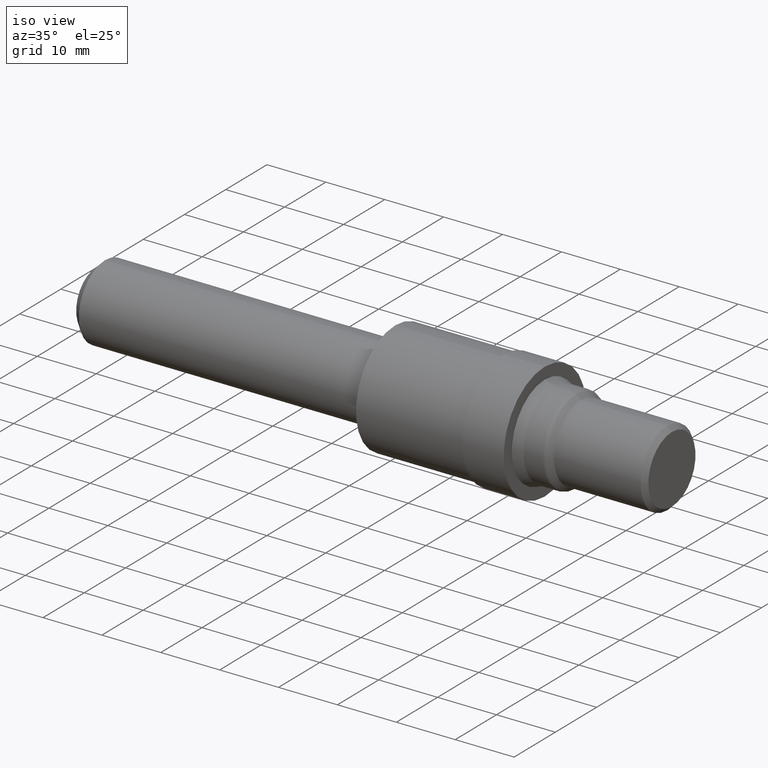
[diagram: clean part render]
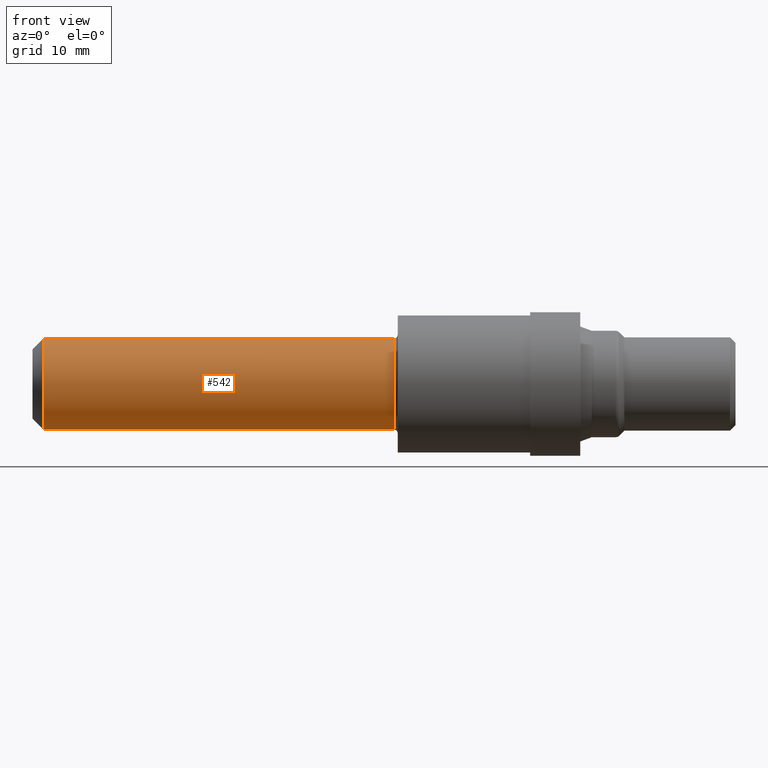
[diagram: tour spotlight — one face highlighted and labeled with its STEP entity id]
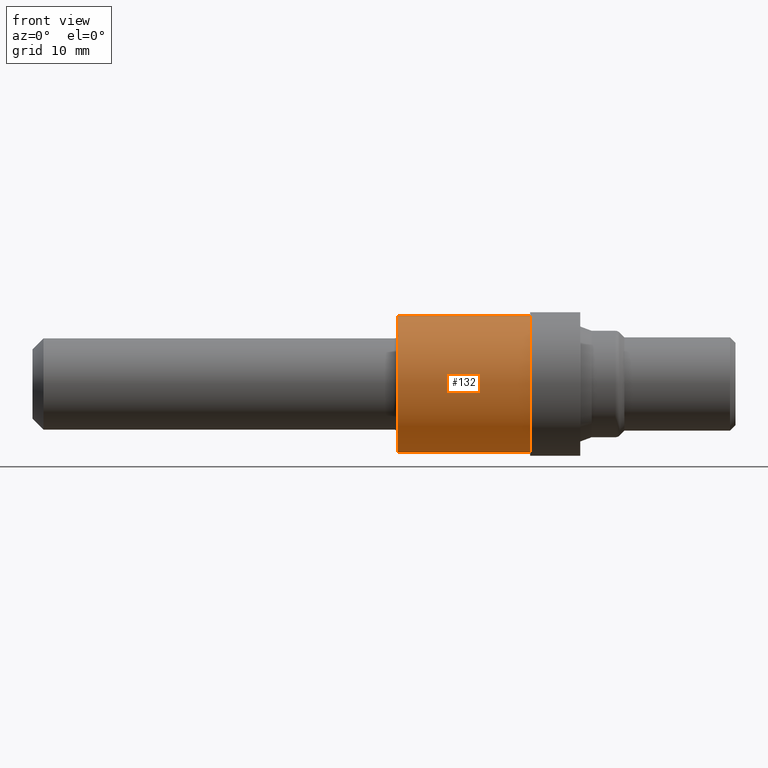
[diagram: tour spotlight — one face highlighted and labeled with its STEP entity id]
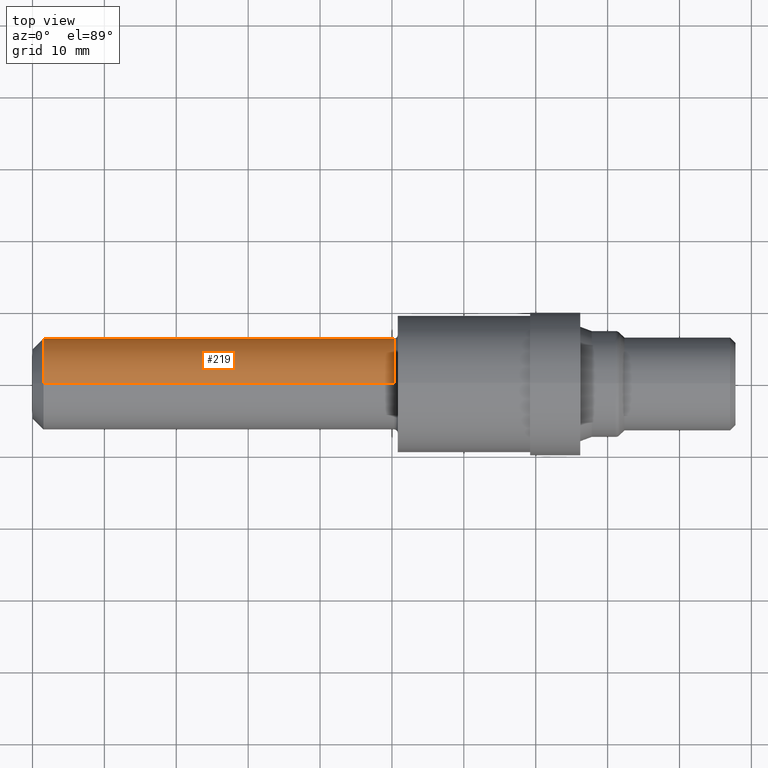
[diagram: tour spotlight — one face highlighted and labeled with its STEP entity id]
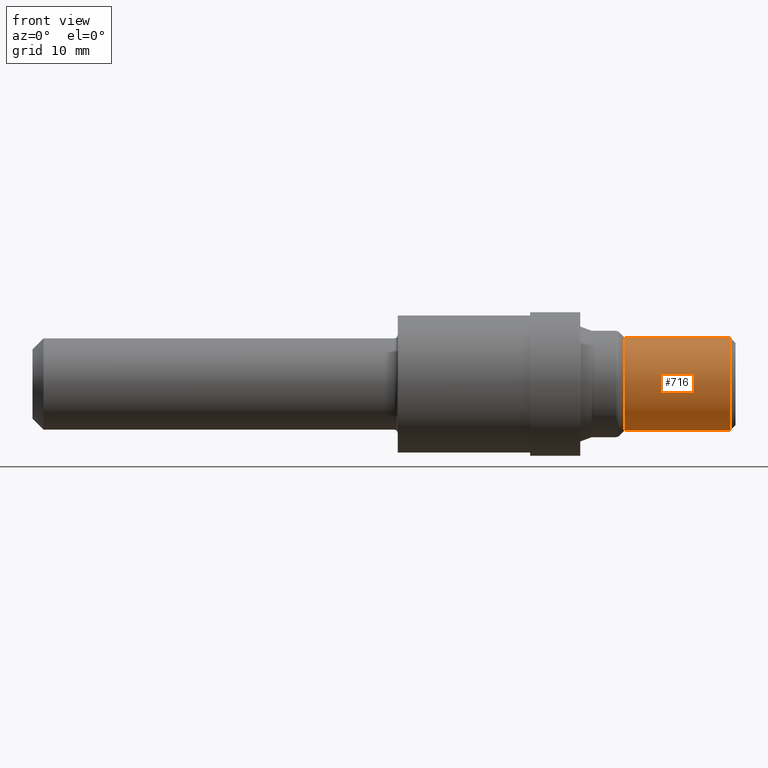
[diagram: tour spotlight — one face highlighted and labeled with its STEP entity id]
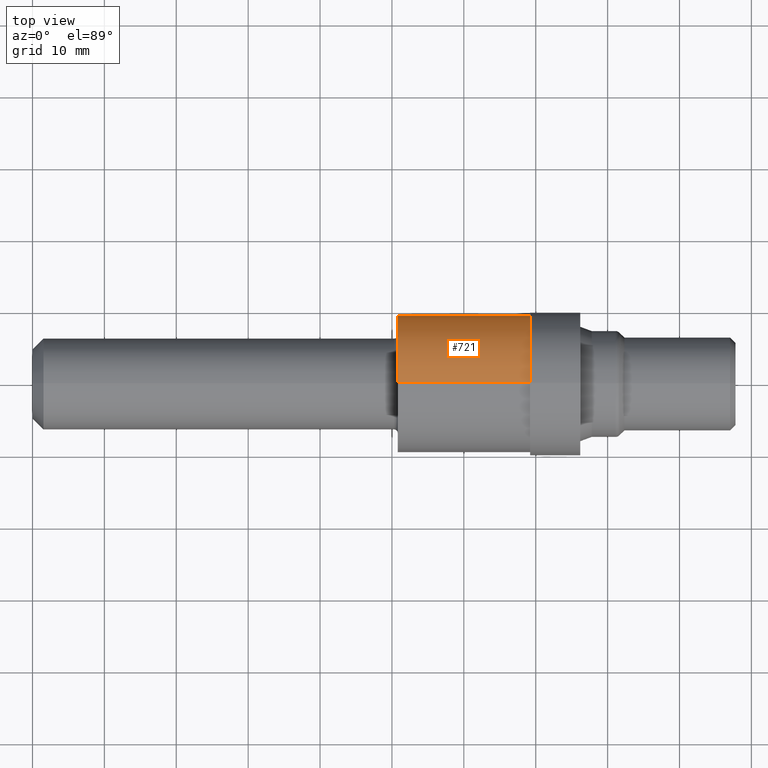
[diagram: tour spotlight — one face highlighted and labeled with its STEP entity id]
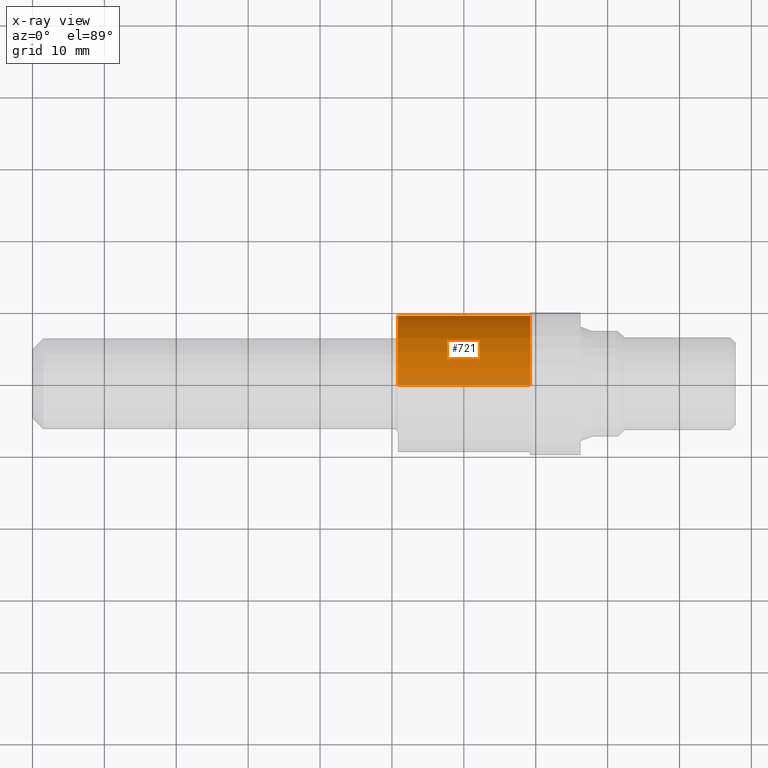
[diagram: x-ray of the same camera — body ghosted, this tour face saturated]
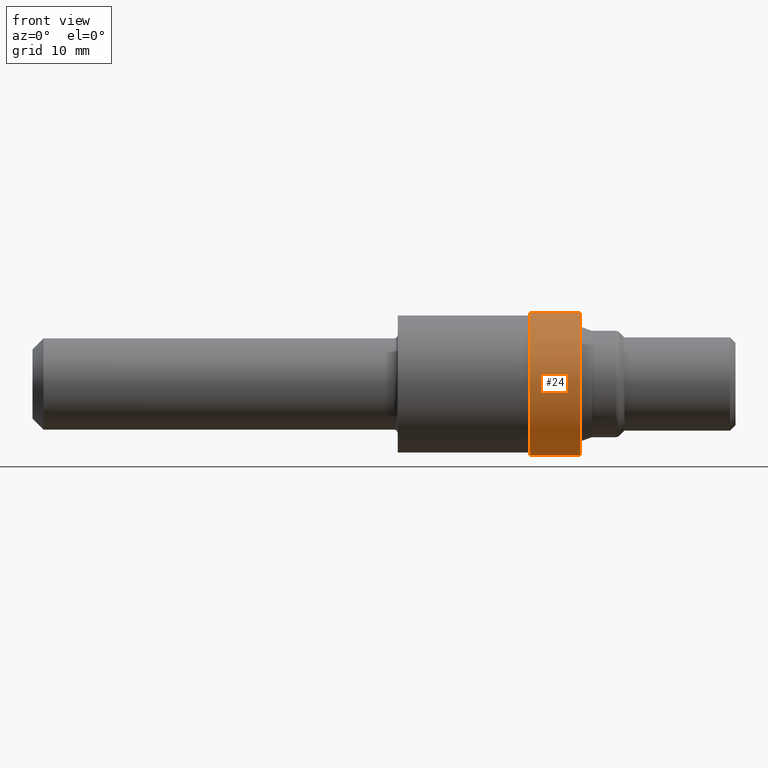
[diagram: tour spotlight — one face highlighted and labeled with its STEP entity id]
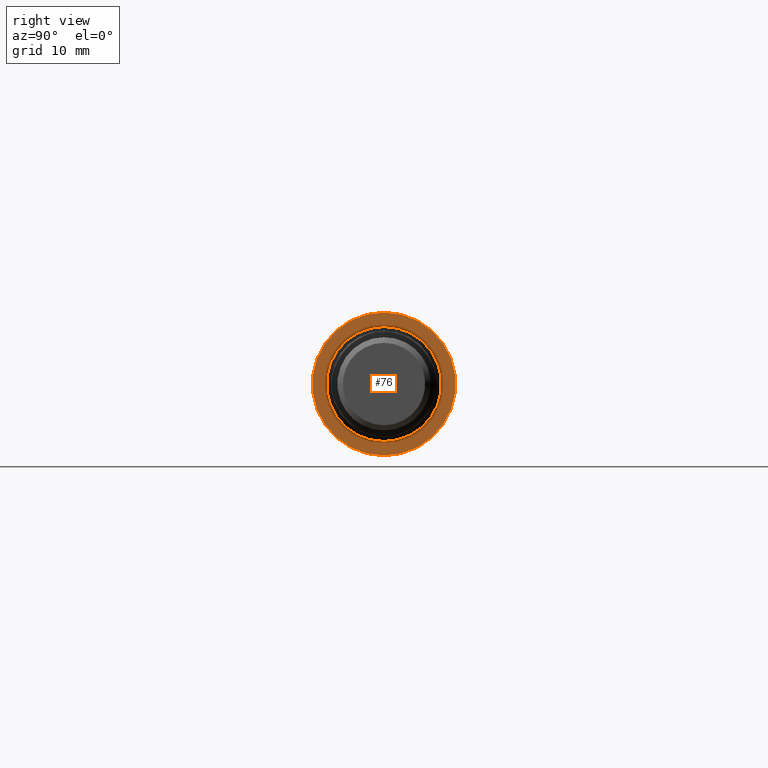
[diagram: tour spotlight — one face highlighted and labeled with its STEP entity id]
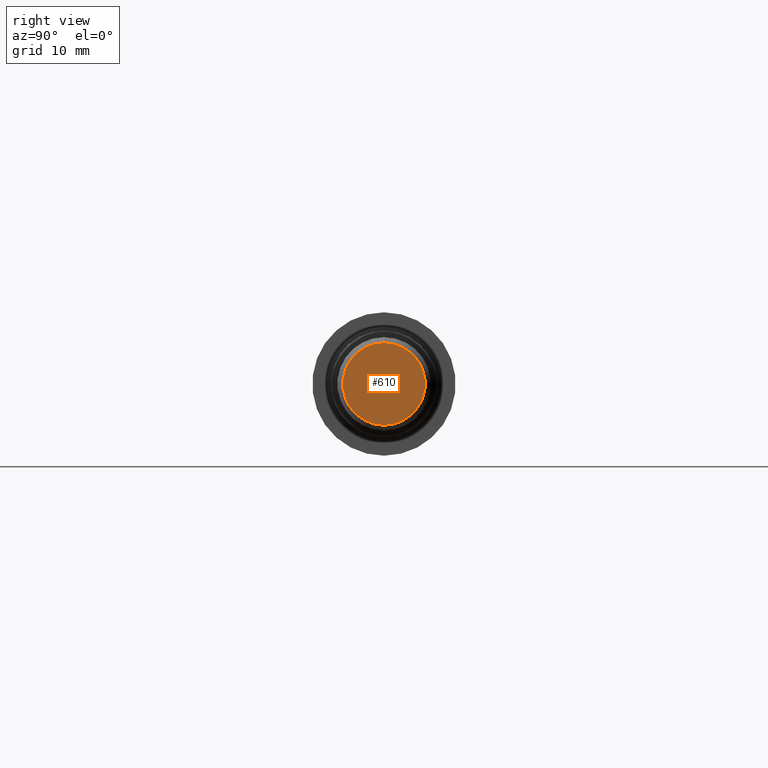
[diagram: tour spotlight — one face highlighted and labeled with its STEP entity id]
A machine part: a face-by-face anatomy tour. The part has 27 B-rep faces; the first image is the clean iso view, then the 8 largest visible faces are spotlighted one at a time (largest first), each with its STEP entity span.

Face 1 — front view, entity #542. In plain terms, the highlighted cylindrical surface (partial cylindrical patch) has radius 6.3462 mm, axis along (-1, -0, -0).
Definition (entity closure, byte-faithful):
#85 = AXIS2_PLACEMENT_3D ( 'NONE', #611, #561, #388 ) ;
#86 = LINE ( 'NONE', #104, #124 ) ;
#96 = CYLINDRICAL_SURFACE ( 'NONE', #395, 0.2498499999999999888 ) ;
#104 = CARTESIAN_POINT ( 'NONE',  ( 0.0000000000000000000, 3.059780027669661931E-17, -0.2498499999999999888 ) ) ;
#109 = VECTOR ( 'NONE', #292, 39.37007874015748143 ) ;
#111 = DIRECTION ( 'NONE',  ( -1.000000000000000000, -0.0000000000000000000, -0.0000000000000000000 ) ) ;
#124 = VECTOR ( 'NONE', #111, 39.37007874015748143 ) ;
#128 = LINE ( 'NONE', #169, #109 ) ;
#169 = CARTESIAN_POINT ( 'NONE',  ( 0.0000000000000000000, 0.0000000000000000000, 0.2498499999999999888 ) ) ;
#170 = EDGE_CURVE ( 'NONE', #297, #676, #128, .T. ) ;
#195 = FACE_OUTER_BOUND ( 'NONE', #258, .T. ) ;
#211 = CIRCLE ( 'NONE', #268, 0.2498500000000000443 ) ;
#238 = DIRECTION ( 'NONE',  ( -1.000000000000000000, -0.0000000000000000000, -0.0000000000000000000 ) ) ;
#258 = EDGE_LOOP ( 'NONE', ( #549, #339, #308, #337 ) ) ;
#268 = AXIS2_PLACEMENT_3D ( 'NONE', #438, #381, #489 ) ;
#292 = DIRECTION ( 'NONE',  ( -1.000000000000000000, -0.0000000000000000000, -0.0000000000000000000 ) ) ;
#297 = VERTEX_POINT ( 'NONE', #450 ) ;
#308 = ORIENTED_EDGE ( 'NONE', *, *, #170, .T. ) ;
#337 = ORIENTED_EDGE ( 'NONE', *, *, #625, .F. ) ;
#339 = ORIENTED_EDGE ( 'NONE', *, *, #517, .T. ) ;
#381 = DIRECTION ( 'NONE',  ( -1.000000000000000000, -0.0000000000000000000, -0.0000000000000000000 ) ) ;
#388 = DIRECTION ( 'NONE',  ( 0.0000000000000000000, 0.0000000000000000000, 1.000000000000000000 ) ) ;
#395 = AXIS2_PLACEMENT_3D ( 'NONE', #592, #238, #574 ) ;
#438 = CARTESIAN_POINT ( 'NONE',  ( 1.979999999999999982, 0.0000000000000000000, 0.0000000000000000000 ) ) ;
#448 = EDGE_CURVE ( 'NONE', #462, #519, #86, .T. ) ;
#450 = CARTESIAN_POINT ( 'NONE',  ( 1.979999999999999982, 0.0000000000000000000, 0.2498500000000000443 ) ) ;
#462 = VERTEX_POINT ( 'NONE', #624 ) ;
#489 = DIRECTION ( 'NONE',  ( 0.0000000000000000000, 0.0000000000000000000, 1.000000000000000000 ) ) ;
#517 = EDGE_CURVE ( 'NONE', #462, #297, #211, .T. ) ;
#519 = VERTEX_POINT ( 'NONE', #553 ) ;
#533 = CIRCLE ( 'NONE', #85, 0.2498499999999999888 ) ;
#542 = ADVANCED_FACE ( 'NONE', ( #195 ), #96, .T. ) ;
#546 = CARTESIAN_POINT ( 'NONE',  ( 0.05999999999999999778, 0.0000000000000000000, 0.2498499999999999888 ) ) ;
#549 = ORIENTED_EDGE ( 'NONE', *, *, #448, .F. ) ;
#553 = CARTESIAN_POINT ( 'NONE',  ( 0.05999999999999999778, 3.059780027669661931E-17, -0.2498499999999999888 ) ) ;
#561 = DIRECTION ( 'NONE',  ( -1.000000000000000000, -0.0000000000000000000, -0.0000000000000000000 ) ) ;
#574 = DIRECTION ( 'NONE',  ( 0.0000000000000000000, 0.0000000000000000000, 1.000000000000000000 ) ) ;
#592 = CARTESIAN_POINT ( 'NONE',  ( 0.0000000000000000000, 0.0000000000000000000, 0.0000000000000000000 ) ) ;
#611 = CARTESIAN_POINT ( 'NONE',  ( 0.05999999999999999778, 0.0000000000000000000, 0.0000000000000000000 ) ) ;
#624 = CARTESIAN_POINT ( 'NONE',  ( 1.979999999999999982, 3.182244707584398213E-17, -0.2498500000000000720 ) ) ;
#625 = EDGE_CURVE ( 'NONE', #519, #676, #533, .T. ) ;
#676 = VERTEX_POINT ( 'NONE', #546 ) ;

Face 2 — front view, entity #132. In plain terms, the highlighted cylindrical surface (partial cylindrical patch) has radius 9.525 mm, axis along (-1, -0, -0).
Definition (entity closure, byte-faithful):
#64 = CARTESIAN_POINT ( 'NONE',  ( 2.725000000000000089, 0.0000000000000000000, 0.3750000000000000555 ) ) ;
#114 = EDGE_CURVE ( 'NONE', #351, #216, #176, .T. ) ;
#119 = CYLINDRICAL_SURFACE ( 'NONE', #728, 0.3750000000000000555 ) ;
#132 = ADVANCED_FACE ( 'NONE', ( #141 ), #119, .T. ) ;
#141 = FACE_OUTER_BOUND ( 'NONE', #332, .T. ) ;
#147 = VECTOR ( 'NONE', #156, 39.37007874015748143 ) ;
#156 = DIRECTION ( 'NONE',  ( -1.000000000000000000, -0.0000000000000000000, -0.0000000000000000000 ) ) ;
#176 = CIRCLE ( 'NONE', #491, 0.3750000000000000555 ) ;
#178 = VECTOR ( 'NONE', #377, 39.37007874015748143 ) ;
#187 = DIRECTION ( 'NONE',  ( 0.0000000000000000000, 0.0000000000000000000, 1.000000000000000000 ) ) ;
#216 = VERTEX_POINT ( 'NONE', #507 ) ;
#246 = LINE ( 'NONE', #255, #147 ) ;
#255 = CARTESIAN_POINT ( 'NONE',  ( 0.0000000000000000000, 4.592425496802575451E-17, -0.3750000000000000555 ) ) ;
#296 = DIRECTION ( 'NONE',  ( -1.000000000000000000, -0.0000000000000000000, -0.0000000000000000000 ) ) ;
#318 = DIRECTION ( 'NONE',  ( 0.0000000000000000000, 0.0000000000000000000, 1.000000000000000000 ) ) ;
#330 = EDGE_CURVE ( 'NONE', #398, #351, #246, .T. ) ;
#332 = EDGE_LOOP ( 'NONE', ( #529, #413, #539, #723 ) ) ;
#351 = VERTEX_POINT ( 'NONE', #593 ) ;
#377 = DIRECTION ( 'NONE',  ( -1.000000000000000000, -0.0000000000000000000, -0.0000000000000000000 ) ) ;
#398 = VERTEX_POINT ( 'NONE', #478 ) ;
#413 = ORIENTED_EDGE ( 'NONE', *, *, #509, .T. ) ;
#444 = CARTESIAN_POINT ( 'NONE',  ( 2.000000000000000000, 0.0000000000000000000, 0.0000000000000000000 ) ) ;
#478 = CARTESIAN_POINT ( 'NONE',  ( 2.725000000000000089, 4.592425496802575451E-17, -0.3750000000000000555 ) ) ;
#491 = AXIS2_PLACEMENT_3D ( 'NONE', #444, #550, #318 ) ;
#507 = CARTESIAN_POINT ( 'NONE',  ( 2.000000000000000000, 0.0000000000000000000, 0.3750000000000000555 ) ) ;
#509 = EDGE_CURVE ( 'NONE', #398, #548, #725, .T. ) ;
#512 = LINE ( 'NONE', #599, #178 ) ;
#523 = CARTESIAN_POINT ( 'NONE',  ( 2.725000000000000089, 0.0000000000000000000, 0.0000000000000000000 ) ) ;
#529 = ORIENTED_EDGE ( 'NONE', *, *, #330, .F. ) ;
#539 = ORIENTED_EDGE ( 'NONE', *, *, #589, .T. ) ;
#545 = AXIS2_PLACEMENT_3D ( 'NONE', #523, #570, #187 ) ;
#548 = VERTEX_POINT ( 'NONE', #64 ) ;
#550 = DIRECTION ( 'NONE',  ( -1.000000000000000000, -0.0000000000000000000, -0.0000000000000000000 ) ) ;
#557 = DIRECTION ( 'NONE',  ( 0.0000000000000000000, 0.0000000000000000000, 1.000000000000000000 ) ) ;
#570 = DIRECTION ( 'NONE',  ( -1.000000000000000000, -0.0000000000000000000, -0.0000000000000000000 ) ) ;
#589 = EDGE_CURVE ( 'NONE', #548, #216, #512, .T. ) ;
#593 = CARTESIAN_POINT ( 'NONE',  ( 2.000000000000000000, 4.592425496802575451E-17, -0.3750000000000000555 ) ) ;
#599 = CARTESIAN_POINT ( 'NONE',  ( 0.0000000000000000000, 0.0000000000000000000, 0.3750000000000000555 ) ) ;
#685 = CARTESIAN_POINT ( 'NONE',  ( 0.0000000000000000000, 0.0000000000000000000, 0.0000000000000000000 ) ) ;
#723 = ORIENTED_EDGE ( 'NONE', *, *, #114, .F. ) ;
#725 = CIRCLE ( 'NONE', #545, 0.3750000000000000555 ) ;
#728 = AXIS2_PLACEMENT_3D ( 'NONE', #685, #296, #557 ) ;

Face 3 — top view, entity #219. In plain terms, the highlighted cylindrical surface (partial cylindrical patch) has radius 6.3462 mm, axis along (-1, -0, -0).
Definition (entity closure, byte-faithful):
#51 = CYLINDRICAL_SURFACE ( 'NONE', #653, 0.2498499999999999888 ) ;
#66 = DIRECTION ( 'NONE',  ( 0.0000000000000000000, 0.0000000000000000000, 1.000000000000000000 ) ) ;
#67 = FACE_OUTER_BOUND ( 'NONE', #606, .T. ) ;
#80 = CIRCLE ( 'NONE', #673, 0.2498500000000000443 ) ;
#86 = LINE ( 'NONE', #104, #124 ) ;
#104 = CARTESIAN_POINT ( 'NONE',  ( 0.0000000000000000000, 3.059780027669661931E-17, -0.2498499999999999888 ) ) ;
#109 = VECTOR ( 'NONE', #292, 39.37007874015748143 ) ;
#111 = DIRECTION ( 'NONE',  ( -1.000000000000000000, -0.0000000000000000000, -0.0000000000000000000 ) ) ;
#124 = VECTOR ( 'NONE', #111, 39.37007874015748143 ) ;
#128 = LINE ( 'NONE', #169, #109 ) ;
#139 = DIRECTION ( 'NONE',  ( -1.000000000000000000, -0.0000000000000000000, -0.0000000000000000000 ) ) ;
#144 = DIRECTION ( 'NONE',  ( 0.0000000000000000000, 0.0000000000000000000, 1.000000000000000000 ) ) ;
#160 = DIRECTION ( 'NONE',  ( 0.0000000000000000000, 0.0000000000000000000, 1.000000000000000000 ) ) ;
#169 = CARTESIAN_POINT ( 'NONE',  ( 0.0000000000000000000, 0.0000000000000000000, 0.2498499999999999888 ) ) ;
#170 = EDGE_CURVE ( 'NONE', #297, #676, #128, .T. ) ;
#208 = EDGE_CURVE ( 'NONE', #297, #462, #80, .T. ) ;
#219 = ADVANCED_FACE ( 'NONE', ( #67 ), #51, .T. ) ;
#245 = CARTESIAN_POINT ( 'NONE',  ( 1.979999999999999982, 0.0000000000000000000, 0.0000000000000000000 ) ) ;
#247 = DIRECTION ( 'NONE',  ( -1.000000000000000000, -0.0000000000000000000, -0.0000000000000000000 ) ) ;
#275 = AXIS2_PLACEMENT_3D ( 'NONE', #419, #654, #66 ) ;
#292 = DIRECTION ( 'NONE',  ( -1.000000000000000000, -0.0000000000000000000, -0.0000000000000000000 ) ) ;
#297 = VERTEX_POINT ( 'NONE', #450 ) ;
#372 = CARTESIAN_POINT ( 'NONE',  ( 0.0000000000000000000, 0.0000000000000000000, 0.0000000000000000000 ) ) ;
#419 = CARTESIAN_POINT ( 'NONE',  ( 0.05999999999999999778, 0.0000000000000000000, 0.0000000000000000000 ) ) ;
#448 = EDGE_CURVE ( 'NONE', #462, #519, #86, .T. ) ;
#450 = CARTESIAN_POINT ( 'NONE',  ( 1.979999999999999982, 0.0000000000000000000, 0.2498500000000000443 ) ) ;
#461 = ORIENTED_EDGE ( 'NONE', *, *, #208, .T. ) ;
#462 = VERTEX_POINT ( 'NONE', #624 ) ;
#483 = ORIENTED_EDGE ( 'NONE', *, *, #668, .F. ) ;
#519 = VERTEX_POINT ( 'NONE', #553 ) ;
#546 = CARTESIAN_POINT ( 'NONE',  ( 0.05999999999999999778, 0.0000000000000000000, 0.2498499999999999888 ) ) ;
#553 = CARTESIAN_POINT ( 'NONE',  ( 0.05999999999999999778, 3.059780027669661931E-17, -0.2498499999999999888 ) ) ;
#585 = ORIENTED_EDGE ( 'NONE', *, *, #448, .T. ) ;
#606 = EDGE_LOOP ( 'NONE', ( #461, #585, #483, #710 ) ) ;
#624 = CARTESIAN_POINT ( 'NONE',  ( 1.979999999999999982, 3.182244707584398213E-17, -0.2498500000000000720 ) ) ;
#653 = AXIS2_PLACEMENT_3D ( 'NONE', #372, #139, #144 ) ;
#654 = DIRECTION ( 'NONE',  ( -1.000000000000000000, -0.0000000000000000000, -0.0000000000000000000 ) ) ;
#668 = EDGE_CURVE ( 'NONE', #676, #519, #681, .T. ) ;
#673 = AXIS2_PLACEMENT_3D ( 'NONE', #245, #247, #160 ) ;
#676 = VERTEX_POINT ( 'NONE', #546 ) ;
#681 = CIRCLE ( 'NONE', #275, 0.2498499999999999888 ) ;
#710 = ORIENTED_EDGE ( 'NONE', *, *, #170, .F. ) ;

Face 4 — front view, entity #716. In plain terms, the highlighted cylindrical surface (partial cylindrical patch) has radius 6.4935 mm, axis along (-1, -0, -0).
Definition (entity closure, byte-faithful):
#28 = EDGE_CURVE ( 'NONE', #451, #674, #189, .T. ) ;
#35 = ORIENTED_EDGE ( 'NONE', *, *, #28, .T. ) ;
#44 = FACE_OUTER_BOUND ( 'NONE', #707, .T. ) ;
#56 = DIRECTION ( 'NONE',  ( -1.000000000000000000, -0.0000000000000000000, -0.0000000000000000000 ) ) ;
#65 = VECTOR ( 'NONE', #454, 39.37007874015748143 ) ;
#78 = LINE ( 'NONE', #154, #65 ) ;
#121 = EDGE_CURVE ( 'NONE', #451, #740, #151, .T. ) ;
#140 = VECTOR ( 'NONE', #56, 39.37007874015748143 ) ;
#151 = LINE ( 'NONE', #315, #140 ) ;
#154 = CARTESIAN_POINT ( 'NONE',  ( 0.0000000000000000000, 0.0000000000000000000, 0.2556499999999999884 ) ) ;
#173 = AXIS2_PLACEMENT_3D ( 'NONE', #239, #741, #508 ) ;
#181 = CARTESIAN_POINT ( 'NONE',  ( 3.820000000000000284, 0.0000000000000000000, 0.0000000000000000000 ) ) ;
#189 = CIRCLE ( 'NONE', #368, 0.2556499999999999884 ) ;
#203 = CARTESIAN_POINT ( 'NONE',  ( 3.820000000000000284, 0.0000000000000000000, 0.2556499999999999884 ) ) ;
#223 = EDGE_CURVE ( 'NONE', #674, #614, #78, .T. ) ;
#226 = AXIS2_PLACEMENT_3D ( 'NONE', #358, #392, #699 ) ;
#239 = CARTESIAN_POINT ( 'NONE',  ( 3.241249999999999964, 0.0000000000000000000, 0.0000000000000000000 ) ) ;
#253 = ORIENTED_EDGE ( 'NONE', *, *, #223, .T. ) ;
#291 = CYLINDRICAL_SURFACE ( 'NONE', #226, 0.2556499999999999884 ) ;
#315 = CARTESIAN_POINT ( 'NONE',  ( 0.0000000000000000000, 3.130809542020208383E-17, -0.2556499999999999884 ) ) ;
#346 = CARTESIAN_POINT ( 'NONE',  ( 3.820000000000000284, 3.130809542020208383E-17, -0.2556499999999999884 ) ) ;
#358 = CARTESIAN_POINT ( 'NONE',  ( 0.0000000000000000000, 0.0000000000000000000, 0.0000000000000000000 ) ) ;
#360 = CARTESIAN_POINT ( 'NONE',  ( 3.241249999999999964, 3.130809542020208383E-17, -0.2556499999999999884 ) ) ;
#368 = AXIS2_PLACEMENT_3D ( 'NONE', #181, #600, #631 ) ;
#392 = DIRECTION ( 'NONE',  ( -1.000000000000000000, -0.0000000000000000000, -0.0000000000000000000 ) ) ;
#400 = CIRCLE ( 'NONE', #173, 0.2556499999999999884 ) ;
#424 = EDGE_CURVE ( 'NONE', #740, #614, #400, .T. ) ;
#451 = VERTEX_POINT ( 'NONE', #346 ) ;
#454 = DIRECTION ( 'NONE',  ( -1.000000000000000000, -0.0000000000000000000, -0.0000000000000000000 ) ) ;
#508 = DIRECTION ( 'NONE',  ( 0.0000000000000000000, 0.0000000000000000000, 1.000000000000000000 ) ) ;
#564 = ORIENTED_EDGE ( 'NONE', *, *, #424, .F. ) ;
#600 = DIRECTION ( 'NONE',  ( -1.000000000000000000, -0.0000000000000000000, -0.0000000000000000000 ) ) ;
#614 = VERTEX_POINT ( 'NONE', #689 ) ;
#631 = DIRECTION ( 'NONE',  ( 0.0000000000000000000, 0.0000000000000000000, 1.000000000000000000 ) ) ;
#674 = VERTEX_POINT ( 'NONE', #203 ) ;
#689 = CARTESIAN_POINT ( 'NONE',  ( 3.241249999999999964, 0.0000000000000000000, 0.2556499999999999884 ) ) ;
#696 = ORIENTED_EDGE ( 'NONE', *, *, #121, .F. ) ;
#699 = DIRECTION ( 'NONE',  ( 0.0000000000000000000, 0.0000000000000000000, 1.000000000000000000 ) ) ;
#707 = EDGE_LOOP ( 'NONE', ( #696, #35, #253, #564 ) ) ;
#716 = ADVANCED_FACE ( 'NONE', ( #44 ), #291, .T. ) ;
#740 = VERTEX_POINT ( 'NONE', #360 ) ;
#741 = DIRECTION ( 'NONE',  ( -1.000000000000000000, -0.0000000000000000000, -0.0000000000000000000 ) ) ;

Face 5 — top view, entity #721. An x-ray twin of the same camera follows (body ghosted, this face saturated) — the face is partly hidden behind the body. In plain terms, the highlighted cylindrical surface (partial cylindrical patch) has radius 9.525 mm, axis along (-1, -0, -0).
Definition (entity closure, byte-faithful):
#36 = DIRECTION ( 'NONE',  ( 0.0000000000000000000, 0.0000000000000000000, 1.000000000000000000 ) ) ;
#37 = DIRECTION ( 'NONE',  ( -1.000000000000000000, -0.0000000000000000000, -0.0000000000000000000 ) ) ;
#48 = FACE_OUTER_BOUND ( 'NONE', #537, .T. ) ;
#63 = CARTESIAN_POINT ( 'NONE',  ( 2.000000000000000000, 0.0000000000000000000, 0.0000000000000000000 ) ) ;
#64 = CARTESIAN_POINT ( 'NONE',  ( 2.725000000000000089, 0.0000000000000000000, 0.3750000000000000555 ) ) ;
#73 = DIRECTION ( 'NONE',  ( 0.0000000000000000000, 0.0000000000000000000, 1.000000000000000000 ) ) ;
#113 = DIRECTION ( 'NONE',  ( -1.000000000000000000, -0.0000000000000000000, -0.0000000000000000000 ) ) ;
#115 = EDGE_CURVE ( 'NONE', #548, #398, #152, .T. ) ;
#147 = VECTOR ( 'NONE', #156, 39.37007874015748143 ) ;
#152 = CIRCLE ( 'NONE', #677, 0.3750000000000000555 ) ;
#156 = DIRECTION ( 'NONE',  ( -1.000000000000000000, -0.0000000000000000000, -0.0000000000000000000 ) ) ;
#178 = VECTOR ( 'NONE', #377, 39.37007874015748143 ) ;
#216 = VERTEX_POINT ( 'NONE', #507 ) ;
#246 = LINE ( 'NONE', #255, #147 ) ;
#252 = DIRECTION ( 'NONE',  ( 0.0000000000000000000, 0.0000000000000000000, 1.000000000000000000 ) ) ;
#255 = CARTESIAN_POINT ( 'NONE',  ( 0.0000000000000000000, 4.592425496802575451E-17, -0.3750000000000000555 ) ) ;
#262 = ORIENTED_EDGE ( 'NONE', *, *, #456, .F. ) ;
#299 = DIRECTION ( 'NONE',  ( -1.000000000000000000, -0.0000000000000000000, -0.0000000000000000000 ) ) ;
#313 = CARTESIAN_POINT ( 'NONE',  ( 2.725000000000000089, 0.0000000000000000000, 0.0000000000000000000 ) ) ;
#322 = AXIS2_PLACEMENT_3D ( 'NONE', #586, #113, #252 ) ;
#330 = EDGE_CURVE ( 'NONE', #398, #351, #246, .T. ) ;
#350 = ORIENTED_EDGE ( 'NONE', *, *, #330, .T. ) ;
#351 = VERTEX_POINT ( 'NONE', #593 ) ;
#377 = DIRECTION ( 'NONE',  ( -1.000000000000000000, -0.0000000000000000000, -0.0000000000000000000 ) ) ;
#398 = VERTEX_POINT ( 'NONE', #478 ) ;
#456 = EDGE_CURVE ( 'NONE', #216, #351, #692, .T. ) ;
#478 = CARTESIAN_POINT ( 'NONE',  ( 2.725000000000000089, 4.592425496802575451E-17, -0.3750000000000000555 ) ) ;
#507 = CARTESIAN_POINT ( 'NONE',  ( 2.000000000000000000, 0.0000000000000000000, 0.3750000000000000555 ) ) ;
#512 = LINE ( 'NONE', #599, #178 ) ;
#537 = EDGE_LOOP ( 'NONE', ( #698, #350, #262, #703 ) ) ;
#544 = AXIS2_PLACEMENT_3D ( 'NONE', #63, #37, #73 ) ;
#548 = VERTEX_POINT ( 'NONE', #64 ) ;
#586 = CARTESIAN_POINT ( 'NONE',  ( 0.0000000000000000000, 0.0000000000000000000, 0.0000000000000000000 ) ) ;
#589 = EDGE_CURVE ( 'NONE', #548, #216, #512, .T. ) ;
#593 = CARTESIAN_POINT ( 'NONE',  ( 2.000000000000000000, 4.592425496802575451E-17, -0.3750000000000000555 ) ) ;
#599 = CARTESIAN_POINT ( 'NONE',  ( 0.0000000000000000000, 0.0000000000000000000, 0.3750000000000000555 ) ) ;
#677 = AXIS2_PLACEMENT_3D ( 'NONE', #313, #299, #36 ) ;
#679 = CYLINDRICAL_SURFACE ( 'NONE', #322, 0.3750000000000000555 ) ;
#692 = CIRCLE ( 'NONE', #544, 0.3750000000000000555 ) ;
#698 = ORIENTED_EDGE ( 'NONE', *, *, #115, .T. ) ;
#703 = ORIENTED_EDGE ( 'NONE', *, *, #589, .F. ) ;
#721 = ADVANCED_FACE ( 'NONE', ( #48 ), #679, .T. ) ;

Face 6 — front view, entity #24. In plain terms, the highlighted cylindrical surface (partial cylindrical patch) has radius 9.9733 mm, axis along (-1, -0, -0).
Definition (entity closure, byte-faithful):
#7 = AXIS2_PLACEMENT_3D ( 'NONE', #464, #743, #715 ) ;
#8 = CARTESIAN_POINT ( 'NONE',  ( 0.0000000000000000000, 0.0000000000000000000, 0.3926499999999999990 ) ) ;
#15 = DIRECTION ( 'NONE',  ( 0.0000000000000000000, 0.0000000000000000000, 1.000000000000000000 ) ) ;
#23 = CARTESIAN_POINT ( 'NONE',  ( 3.000000000000000444, 0.0000000000000000000, 0.3926499999999999990 ) ) ;
#24 = ADVANCED_FACE ( 'NONE', ( #200 ), #390, .T. ) ;
#62 = CIRCLE ( 'NONE', #7, 0.3926499999999999990 ) ;
#83 = VECTOR ( 'NONE', #513, 39.37007874015748143 ) ;
#110 = CARTESIAN_POINT ( 'NONE',  ( 0.0000000000000000000, 4.808575656852082259E-17, -0.3926499999999999990 ) ) ;
#116 = DIRECTION ( 'NONE',  ( -1.000000000000000000, -0.0000000000000000000, -0.0000000000000000000 ) ) ;
#172 = CARTESIAN_POINT ( 'NONE',  ( 2.725000000000000089, 0.0000000000000000000, 0.3926499999999999990 ) ) ;
#197 = AXIS2_PLACEMENT_3D ( 'NONE', #576, #501, #232 ) ;
#200 = FACE_OUTER_BOUND ( 'NONE', #547, .T. ) ;
#207 = CARTESIAN_POINT ( 'NONE',  ( 2.725000000000000089, 0.0000000000000000000, 0.0000000000000000000 ) ) ;
#232 = DIRECTION ( 'NONE',  ( 0.0000000000000000000, 0.0000000000000000000, 1.000000000000000000 ) ) ;
#270 = CARTESIAN_POINT ( 'NONE',  ( 3.000000000000000444, 4.808575656852082259E-17, -0.3926499999999999990 ) ) ;
#279 = ORIENTED_EDGE ( 'NONE', *, *, #515, .F. ) ;
#300 = VERTEX_POINT ( 'NONE', #270 ) ;
#356 = EDGE_CURVE ( 'NONE', #300, #690, #62, .T. ) ;
#367 = DIRECTION ( 'NONE',  ( -1.000000000000000000, -0.0000000000000000000, -0.0000000000000000000 ) ) ;
#385 = CARTESIAN_POINT ( 'NONE',  ( 2.725000000000000089, 4.808575656852082259E-17, -0.3926499999999999990 ) ) ;
#390 = CYLINDRICAL_SURFACE ( 'NONE', #197, 0.3926499999999999990 ) ;
#418 = EDGE_CURVE ( 'NONE', #690, #663, #598, .T. ) ;
#422 = VERTEX_POINT ( 'NONE', #385 ) ;
#443 = VECTOR ( 'NONE', #116, 39.37007874015748143 ) ;
#464 = CARTESIAN_POINT ( 'NONE',  ( 3.000000000000000444, 0.0000000000000000000, 0.0000000000000000000 ) ) ;
#501 = DIRECTION ( 'NONE',  ( -1.000000000000000000, -0.0000000000000000000, -0.0000000000000000000 ) ) ;
#506 = AXIS2_PLACEMENT_3D ( 'NONE', #207, #367, #15 ) ;
#513 = DIRECTION ( 'NONE',  ( -1.000000000000000000, -0.0000000000000000000, -0.0000000000000000000 ) ) ;
#515 = EDGE_CURVE ( 'NONE', #300, #422, #609, .T. ) ;
#528 = ORIENTED_EDGE ( 'NONE', *, *, #623, .F. ) ;
#547 = EDGE_LOOP ( 'NONE', ( #279, #647, #628, #528 ) ) ;
#576 = CARTESIAN_POINT ( 'NONE',  ( 0.0000000000000000000, 0.0000000000000000000, 0.0000000000000000000 ) ) ;
#598 = LINE ( 'NONE', #8, #443 ) ;
#609 = LINE ( 'NONE', #110, #83 ) ;
#623 = EDGE_CURVE ( 'NONE', #422, #663, #672, .T. ) ;
#628 = ORIENTED_EDGE ( 'NONE', *, *, #418, .T. ) ;
#647 = ORIENTED_EDGE ( 'NONE', *, *, #356, .T. ) ;
#663 = VERTEX_POINT ( 'NONE', #172 ) ;
#672 = CIRCLE ( 'NONE', #506, 0.3926499999999999990 ) ;
#690 = VERTEX_POINT ( 'NONE', #23 ) ;
#715 = DIRECTION ( 'NONE',  ( 0.0000000000000000000, 0.0000000000000000000, 1.000000000000000000 ) ) ;
#743 = DIRECTION ( 'NONE',  ( -1.000000000000000000, -0.0000000000000000000, -0.0000000000000000000 ) ) ;

Face 7 — right view, entity #76. In plain terms, the highlighted planar face has unit normal (-1, 0, -0).
Definition (entity closure, byte-faithful):
#7 = AXIS2_PLACEMENT_3D ( 'NONE', #464, #743, #715 ) ;
#23 = CARTESIAN_POINT ( 'NONE',  ( 3.000000000000000444, 0.0000000000000000000, 0.3926499999999999990 ) ) ;
#26 = CARTESIAN_POINT ( 'NONE',  ( 3.000000000000000444, 0.3926499999999999990, 0.0000000000000000000 ) ) ;
#33 = PLANE ( 'NONE',  #594 ) ;
#34 = CIRCLE ( 'NONE', #150, 0.3147677924678004002 ) ;
#50 = DIRECTION ( 'NONE',  ( -0.0000000000000000000, 0.0000000000000000000, 1.000000000000000000 ) ) ;
#58 = DIRECTION ( 'NONE',  ( -1.000000000000000000, -0.0000000000000000000, -0.0000000000000000000 ) ) ;
#62 = CIRCLE ( 'NONE', #7, 0.3926499999999999990 ) ;
#76 = ADVANCED_FACE ( 'NONE', ( #171, #155 ), #33, .F. ) ;
#123 = DIRECTION ( 'NONE',  ( 0.0000000000000000000, 0.0000000000000000000, 1.000000000000000000 ) ) ;
#136 = AXIS2_PLACEMENT_3D ( 'NONE', #565, #58, #123 ) ;
#150 = AXIS2_PLACEMENT_3D ( 'NONE', #659, #568, #709 ) ;
#155 = FACE_BOUND ( 'NONE', #724, .T. ) ;
#171 = FACE_OUTER_BOUND ( 'NONE', #414, .T. ) ;
#194 = CARTESIAN_POINT ( 'NONE',  ( 3.000000000000000444, 0.0000000000000000000, 0.0000000000000000000 ) ) ;
#233 = VERTEX_POINT ( 'NONE', #525 ) ;
#236 = CARTESIAN_POINT ( 'NONE',  ( 3.000000000000000444, 3.854793695203700741E-17, -0.3147677924678004002 ) ) ;
#270 = CARTESIAN_POINT ( 'NONE',  ( 3.000000000000000444, 4.808575656852082259E-17, -0.3926499999999999990 ) ) ;
#300 = VERTEX_POINT ( 'NONE', #270 ) ;
#307 = ORIENTED_EDGE ( 'NONE', *, *, #686, .F. ) ;
#317 = ORIENTED_EDGE ( 'NONE', *, *, #389, .T. ) ;
#356 = EDGE_CURVE ( 'NONE', #300, #690, #62, .T. ) ;
#389 = EDGE_CURVE ( 'NONE', #233, #711, #726, .T. ) ;
#414 = EDGE_LOOP ( 'NONE', ( #307, #457 ) ) ;
#432 = DIRECTION ( 'NONE',  ( 0.0000000000000000000, 0.0000000000000000000, 1.000000000000000000 ) ) ;
#445 = EDGE_CURVE ( 'NONE', #711, #233, #34, .T. ) ;
#457 = ORIENTED_EDGE ( 'NONE', *, *, #356, .F. ) ;
#464 = CARTESIAN_POINT ( 'NONE',  ( 3.000000000000000444, 0.0000000000000000000, 0.0000000000000000000 ) ) ;
#500 = DIRECTION ( 'NONE',  ( -1.000000000000000000, 0.0000000000000000000, -0.0000000000000000000 ) ) ;
#502 = CIRCLE ( 'NONE', #639, 0.3926499999999999990 ) ;
#525 = CARTESIAN_POINT ( 'NONE',  ( 3.000000000000000444, 0.0000000000000000000, 0.3147677924678004002 ) ) ;
#532 = DIRECTION ( 'NONE',  ( -1.000000000000000000, -0.0000000000000000000, -0.0000000000000000000 ) ) ;
#565 = CARTESIAN_POINT ( 'NONE',  ( 3.000000000000000444, 0.0000000000000000000, 0.0000000000000000000 ) ) ;
#568 = DIRECTION ( 'NONE',  ( -1.000000000000000000, -0.0000000000000000000, -0.0000000000000000000 ) ) ;
#594 = AXIS2_PLACEMENT_3D ( 'NONE', #26, #500, #50 ) ;
#597 = ORIENTED_EDGE ( 'NONE', *, *, #445, .T. ) ;
#639 = AXIS2_PLACEMENT_3D ( 'NONE', #194, #532, #432 ) ;
#659 = CARTESIAN_POINT ( 'NONE',  ( 3.000000000000000444, 0.0000000000000000000, 0.0000000000000000000 ) ) ;
#686 = EDGE_CURVE ( 'NONE', #690, #300, #502, .T. ) ;
#690 = VERTEX_POINT ( 'NONE', #23 ) ;
#709 = DIRECTION ( 'NONE',  ( 0.0000000000000000000, 0.0000000000000000000, 1.000000000000000000 ) ) ;
#711 = VERTEX_POINT ( 'NONE', #236 ) ;
#715 = DIRECTION ( 'NONE',  ( 0.0000000000000000000, 0.0000000000000000000, 1.000000000000000000 ) ) ;
#724 = EDGE_LOOP ( 'NONE', ( #317, #597 ) ) ;
#726 = CIRCLE ( 'NONE', #136, 0.3147677924678004002 ) ;
#743 = DIRECTION ( 'NONE',  ( -1.000000000000000000, -0.0000000000000000000, -0.0000000000000000000 ) ) ;

Face 8 — right view, entity #610. In plain terms, the highlighted planar face has unit normal (-1, 0, -0).
Definition (entity closure, byte-faithful):
#6 = EDGE_CURVE ( 'NONE', #738, #306, #204, .T. ) ;
#13 = EDGE_CURVE ( 'NONE', #306, #738, #205, .T. ) ;
#32 = DIRECTION ( 'NONE',  ( 0.0000000000000000000, 0.0000000000000000000, 1.000000000000000000 ) ) ;
#105 = DIRECTION ( 'NONE',  ( -0.0000000000000000000, 0.0000000000000000000, 1.000000000000000000 ) ) ;
#122 = PLANE ( 'NONE',  #717 ) ;
#204 = CIRCLE ( 'NONE', #251, 0.2256499999999999340 ) ;
#205 = CIRCLE ( 'NONE', #644, 0.2256499999999999340 ) ;
#221 = CARTESIAN_POINT ( 'NONE',  ( 3.850000000000000089, 0.0000000000000000000, 0.0000000000000000000 ) ) ;
#227 = CARTESIAN_POINT ( 'NONE',  ( 3.850000000000000089, 0.0000000000000000000, 0.0000000000000000000 ) ) ;
#251 = AXIS2_PLACEMENT_3D ( 'NONE', #227, #393, #32 ) ;
#260 = ORIENTED_EDGE ( 'NONE', *, *, #6, .F. ) ;
#305 = DIRECTION ( 'NONE',  ( 0.0000000000000000000, 0.0000000000000000000, 1.000000000000000000 ) ) ;
#306 = VERTEX_POINT ( 'NONE', #708 ) ;
#369 = ORIENTED_EDGE ( 'NONE', *, *, #13, .F. ) ;
#393 = DIRECTION ( 'NONE',  ( -1.000000000000000000, -0.0000000000000000000, -0.0000000000000000000 ) ) ;
#394 = FACE_OUTER_BOUND ( 'NONE', #463, .T. ) ;
#407 = CARTESIAN_POINT ( 'NONE',  ( 3.850000000000000089, 0.2256499999999999340, 0.0000000000000000000 ) ) ;
#463 = EDGE_LOOP ( 'NONE', ( #369, #260 ) ) ;
#504 = DIRECTION ( 'NONE',  ( -1.000000000000000000, -0.0000000000000000000, -0.0000000000000000000 ) ) ;
#610 = ADVANCED_FACE ( 'NONE', ( #394 ), #122, .F. ) ;
#644 = AXIS2_PLACEMENT_3D ( 'NONE', #221, #504, #305 ) ;
#657 = DIRECTION ( 'NONE',  ( -1.000000000000000000, 0.0000000000000000000, -0.0000000000000000000 ) ) ;
#704 = CARTESIAN_POINT ( 'NONE',  ( 3.850000000000000089, 2.947112522148105192E-17, -0.2256499999999999340 ) ) ;
#708 = CARTESIAN_POINT ( 'NONE',  ( 3.850000000000000089, 0.0000000000000000000, 0.2256499999999999340 ) ) ;
#717 = AXIS2_PLACEMENT_3D ( 'NONE', #407, #657, #105 ) ;
#738 = VERTEX_POINT ( 'NONE', #704 ) ;